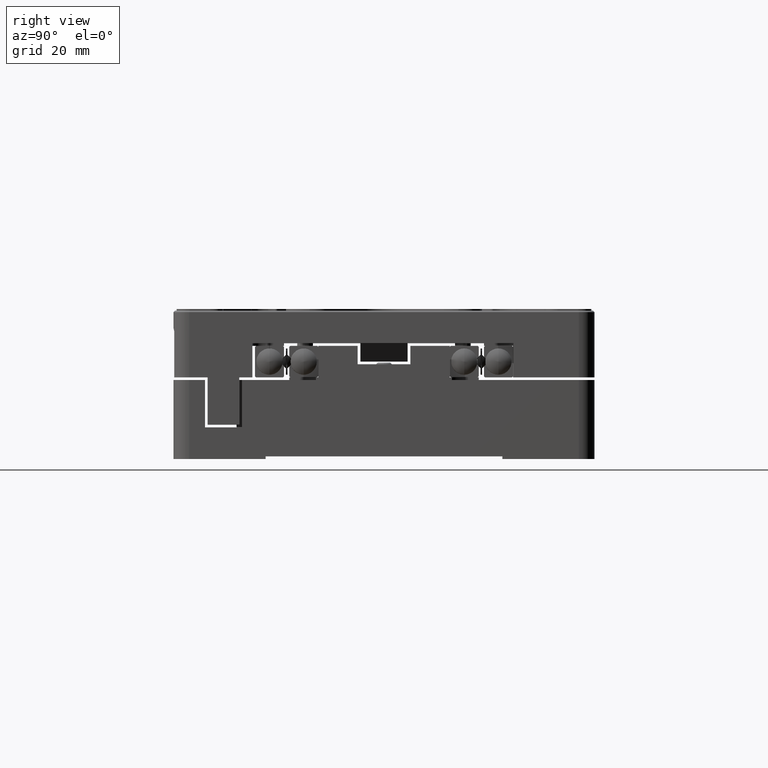
[diagram: clean part render]
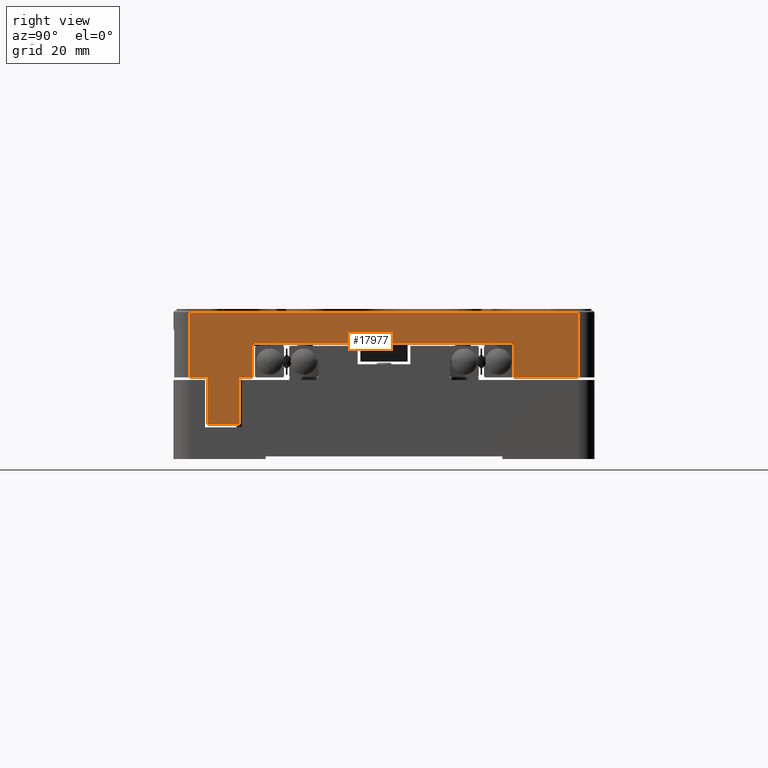
[diagram: same view with one face highlighted and labeled with its STEP entity id]
A machine part, right view. The second image highlights one B-rep face of the part: STEP entity #17977.
In plain terms, the highlighted planar face has unit normal (1, 0, 0).
Its self-contained STEP definition (entity closure, byte-faithful):
#215 = CARTESIAN_POINT ( 'NONE',  ( 55.00000000000000000, -25.00000000000000000, 7.000000000000000000 ) ) ;
#347 = LINE ( 'NONE', #11267, #26035 ) ;
#381 = VERTEX_POINT ( 'NONE', #9076 ) ;
#457 = EDGE_CURVE ( 'NONE', #1754, #18371, #15648, .T. ) ;
#1660 = DIRECTION ( 'NONE',  ( 0.000000000000000000, 1.000000000000000000, 0.000000000000000000 ) ) ;
#1754 = VERTEX_POINT ( 'NONE', #29650 ) ;
#2705 = DIRECTION ( 'NONE',  ( 0.000000000000000000, 0.000000000000000000, -1.000000000000000000 ) ) ;
#2805 = LINE ( 'NONE', #3157, #31609 ) ;
#2990 = VECTOR ( 'NONE', #15322, 1000.000000000000000 ) ;
#3157 = CARTESIAN_POINT ( 'NONE',  ( 55.00000000000000000, 0.000000000000000000, -8.500000000000000000 ) ) ;
#3680 = CARTESIAN_POINT ( 'NONE',  ( 55.00000000000000000, -27.50000000000000000, -8.500000000000000000 ) ) ;
#4729 = ORIENTED_EDGE ( 'NONE', *, *, #28150, .T. ) ;
#5111 = DIRECTION ( 'NONE',  ( 0.000000000000000000, 0.000000000000000000, -1.000000000000000000 ) ) ;
#5549 = CARTESIAN_POINT ( 'NONE',  ( 55.00000000000000000, -25.00000000000000000, 0.5000000000000000000 ) ) ;
#6016 = DIRECTION ( 'NONE',  ( 0.000000000000000000, 1.000000000000000000, 0.000000000000000000 ) ) ;
#6057 = ORIENTED_EDGE ( 'NONE', *, *, #457, .F. ) ;
#6100 = DIRECTION ( 'NONE',  ( 0.000000000000000000, 1.000000000000000000, 0.000000000000000000 ) ) ;
#6583 = CARTESIAN_POINT ( 'NONE',  ( 55.00000000000000000, 0.000000000000000000, 0.5000000000000000000 ) ) ;
#6903 = VECTOR ( 'NONE', #24957, 1000.000000000000000 ) ;
#7293 = DIRECTION ( 'NONE',  ( 0.000000000000000000, 0.000000000000000000, 1.000000000000000000 ) ) ;
#7729 = CARTESIAN_POINT ( 'NONE',  ( 55.00000000000000000, 24.60000000000000142, 0.5000000000000000000 ) ) ;
#7943 = CARTESIAN_POINT ( 'NONE',  ( 55.00000000000000000, 24.60000000000000142, 7.000000000000000000 ) ) ;
#8211 = ORIENTED_EDGE ( 'NONE', *, *, #18610, .T. ) ;
#8736 = VECTOR ( 'NONE', #7293, 1000.000000000000000 ) ;
#8745 = VERTEX_POINT ( 'NONE', #8900 ) ;
#8900 = CARTESIAN_POINT ( 'NONE',  ( 55.00000000000000000, -33.50000000000000000, 0.5000000000000000000 ) ) ;
#9076 = CARTESIAN_POINT ( 'NONE',  ( 55.00000000000000000, -27.50000000000000000, 0.5000000000000000000 ) ) ;
#10109 = LINE ( 'NONE', #18155, #25485 ) ;
#10150 = EDGE_CURVE ( 'NONE', #17521, #21631, #28954, .T. ) ;
#10369 = EDGE_CURVE ( 'NONE', #21631, #29219, #18721, .T. ) ;
#10752 = CARTESIAN_POINT ( 'NONE',  ( 55.00000000000000000, -36.99999997970999743, 0.000000000000000000 ) ) ;
#11267 = CARTESIAN_POINT ( 'NONE',  ( 55.00000000000000000, 0.000000000000000000, 0.5000000000000000000 ) ) ;
#11547 = ORIENTED_EDGE ( 'NONE', *, *, #10369, .T. ) ;
#11600 = ORIENTED_EDGE ( 'NONE', *, *, #30981, .F. ) ;
#11636 = DIRECTION ( 'NONE',  ( 1.000000000000000000, 0.000000000000000000, 0.000000000000000000 ) ) ;
#13262 = VECTOR ( 'NONE', #2705, 1000.000000000000000 ) ;
#14442 = DIRECTION ( 'NONE',  ( 0.000000000000000000, 1.000000000000000000, 0.000000000000000000 ) ) ;
#15235 = CARTESIAN_POINT ( 'NONE',  ( 54.99999999688689911, -36.99999997767999815, 12.90000000415193959 ) ) ;
#15322 = DIRECTION ( 'NONE',  ( 0.000000000000000000, 1.000000000000000000, 0.000000000000000000 ) ) ;
#15528 = VERTEX_POINT ( 'NONE', #15235 ) ;
#15609 = AXIS2_PLACEMENT_3D ( 'NONE', #33673, #11636, #6100 ) ;
#15648 = LINE ( 'NONE', #21199, #20151 ) ;
#16133 = EDGE_LOOP ( 'NONE', ( #28006, #11547, #29180, #6057, #11600, #26861, #23070, #23120, #20128, #29718, #8211, #4729 ) ) ;
#16815 = VECTOR ( 'NONE', #14442, 1000.000000000000000 ) ;
#17521 = VERTEX_POINT ( 'NONE', #215 ) ;
#17977 = ADVANCED_FACE ( 'NONE', ( #27765 ), #28123, .T. ) ;
#18155 = CARTESIAN_POINT ( 'NONE',  ( 55.00000000000000000, -33.50000000000000000, 0.000000000000000000 ) ) ;
#18285 = LINE ( 'NONE', #29222, #26971 ) ;
#18371 = VERTEX_POINT ( 'NONE', #21110 ) ;
#18454 = VECTOR ( 'NONE', #5111, 1000.000000000000000 ) ;
#18610 = EDGE_CURVE ( 'NONE', #381, #20831, #20697, .T. ) ;
#18721 = LINE ( 'NONE', #18882, #18454 ) ;
#18882 = CARTESIAN_POINT ( 'NONE',  ( 55.00000000000000000, 24.60000000000000142, 0.000000000000000000 ) ) ;
#19339 = LINE ( 'NONE', #10752, #13262 ) ;
#20128 = ORIENTED_EDGE ( 'NONE', *, *, #31511, .T. ) ;
#20151 = VECTOR ( 'NONE', #29120, 1000.000000000000000 ) ;
#20697 = LINE ( 'NONE', #6583, #16815 ) ;
#20831 = VERTEX_POINT ( 'NONE', #5549 ) ;
#20994 = EDGE_CURVE ( 'NONE', #27876, #8745, #347, .T. ) ;
#21110 = CARTESIAN_POINT ( 'NONE',  ( 55.00000000000000000, 37.00000000000000000, 0.5000000000000000000 ) ) ;
#21161 = CARTESIAN_POINT ( 'NONE',  ( 54.99999999581000054, 2.131628207279999844E-14, 12.90000000419000159 ) ) ;
#21199 = CARTESIAN_POINT ( 'NONE',  ( 55.00000000000000000, 37.00000000000000000, 0.000000000000000000 ) ) ;
#21631 = VERTEX_POINT ( 'NONE', #7943 ) ;
#22202 = DIRECTION ( 'NONE',  ( 0.000000000000000000, 1.000000000000000000, 0.000000000000000000 ) ) ;
#22273 = CARTESIAN_POINT ( 'NONE',  ( 55.00000000000000000, -25.00000000000000000, 0.000000000000000000 ) ) ;
#22744 = EDGE_CURVE ( 'NONE', #23009, #381, #23569, .T. ) ;
#23009 = VERTEX_POINT ( 'NONE', #3680 ) ;
#23070 = ORIENTED_EDGE ( 'NONE', *, *, #20994, .T. ) ;
#23120 = ORIENTED_EDGE ( 'NONE', *, *, #26871, .T. ) ;
#23569 = LINE ( 'NONE', #31459, #8736 ) ;
#23676 = DIRECTION ( 'NONE',  ( 0.000000000000000000, 1.000000000000000000, 0.000000000000000000 ) ) ;
#24957 = DIRECTION ( 'NONE',  ( 0.000000000000000000, 0.000000000000000000, 1.000000000000000000 ) ) ;
#25485 = VECTOR ( 'NONE', #26386, 1000.000000000000000 ) ;
#25665 = VERTEX_POINT ( 'NONE', #34796 ) ;
#26035 = VECTOR ( 'NONE', #22202, 1000.000000000000000 ) ;
#26386 = DIRECTION ( 'NONE',  ( 0.000000000000000000, 0.000000000000000000, -1.000000000000000000 ) ) ;
#26861 = ORIENTED_EDGE ( 'NONE', *, *, #27398, .T. ) ;
#26871 = EDGE_CURVE ( 'NONE', #8745, #25665, #10109, .T. ) ;
#26971 = VECTOR ( 'NONE', #1660, 1000.000000000000000 ) ;
#27110 = LINE ( 'NONE', #22273, #6903 ) ;
#27306 = EDGE_CURVE ( 'NONE', #29219, #18371, #18285, .T. ) ;
#27398 = EDGE_CURVE ( 'NONE', #15528, #27876, #19339, .T. ) ;
#27765 = FACE_OUTER_BOUND ( 'NONE', #16133, .T. ) ;
#27876 = VERTEX_POINT ( 'NONE', #32714 ) ;
#28006 = ORIENTED_EDGE ( 'NONE', *, *, #10150, .T. ) ;
#28123 = PLANE ( 'NONE',  #15609 ) ;
#28150 = EDGE_CURVE ( 'NONE', #20831, #17521, #27110, .T. ) ;
#28888 = LINE ( 'NONE', #21161, #33853 ) ;
#28954 = LINE ( 'NONE', #29484, #2990 ) ;
#29120 = DIRECTION ( 'NONE',  ( 0.000000000000000000, 0.000000000000000000, -1.000000000000000000 ) ) ;
#29180 = ORIENTED_EDGE ( 'NONE', *, *, #27306, .T. ) ;
#29219 = VERTEX_POINT ( 'NONE', #7729 ) ;
#29222 = CARTESIAN_POINT ( 'NONE',  ( 55.00000000000000000, 0.000000000000000000, 0.5000000000000000000 ) ) ;
#29484 = CARTESIAN_POINT ( 'NONE',  ( 55.00000000000000000, 0.000000000000000000, 7.000000000000000000 ) ) ;
#29650 = CARTESIAN_POINT ( 'NONE',  ( 54.99999999790090044, 36.99999998985499872, 12.90000000417074055 ) ) ;
#29718 = ORIENTED_EDGE ( 'NONE', *, *, #22744, .T. ) ;
#30981 = EDGE_CURVE ( 'NONE', #15528, #1754, #28888, .T. ) ;
#31459 = CARTESIAN_POINT ( 'NONE',  ( 55.00000000000000000, -27.50000000000000000, 0.000000000000000000 ) ) ;
#31511 = EDGE_CURVE ( 'NONE', #25665, #23009, #2805, .T. ) ;
#31609 = VECTOR ( 'NONE', #6016, 1000.000000000000000 ) ;
#32714 = CARTESIAN_POINT ( 'NONE',  ( 55.00000000000000000, -36.99999998985499872, 0.5000000000000000000 ) ) ;
#33673 = CARTESIAN_POINT ( 'NONE',  ( 55.00000000000000000, 0.000000000000000000, 0.000000000000000000 ) ) ;
#33853 = VECTOR ( 'NONE', #23676, 1000.000000000000000 ) ;
#34796 = CARTESIAN_POINT ( 'NONE',  ( 55.00000000000000000, -33.50000000000000000, -8.500000000000000000 ) ) ;